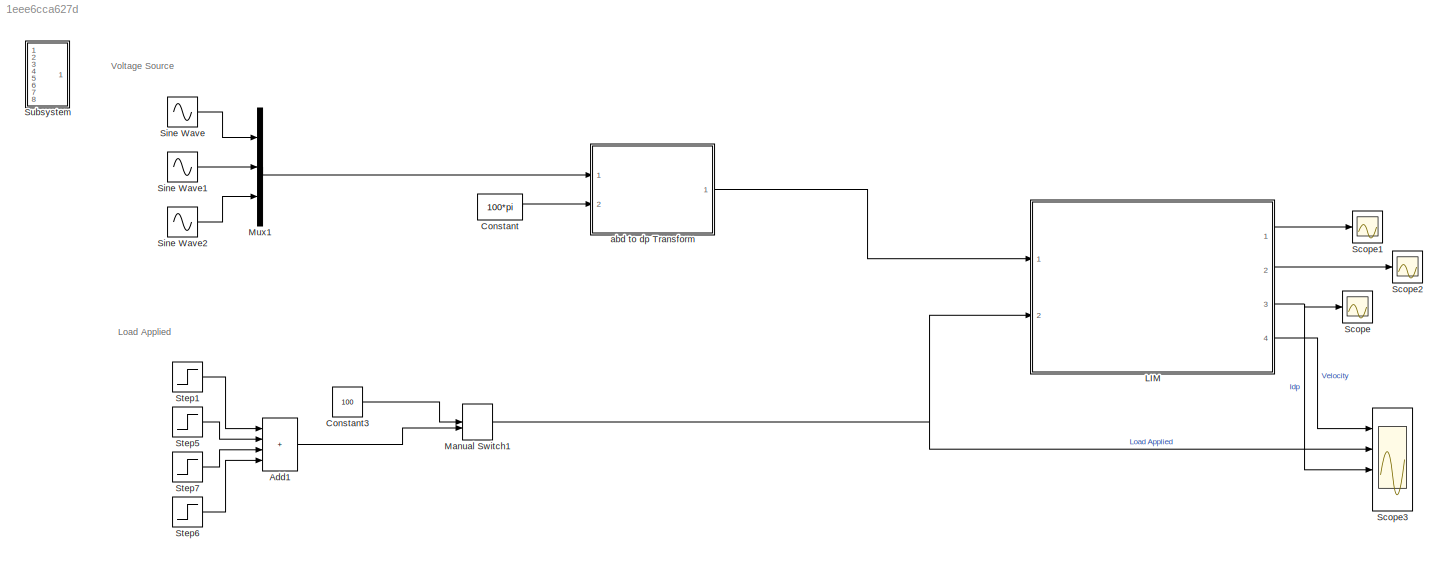
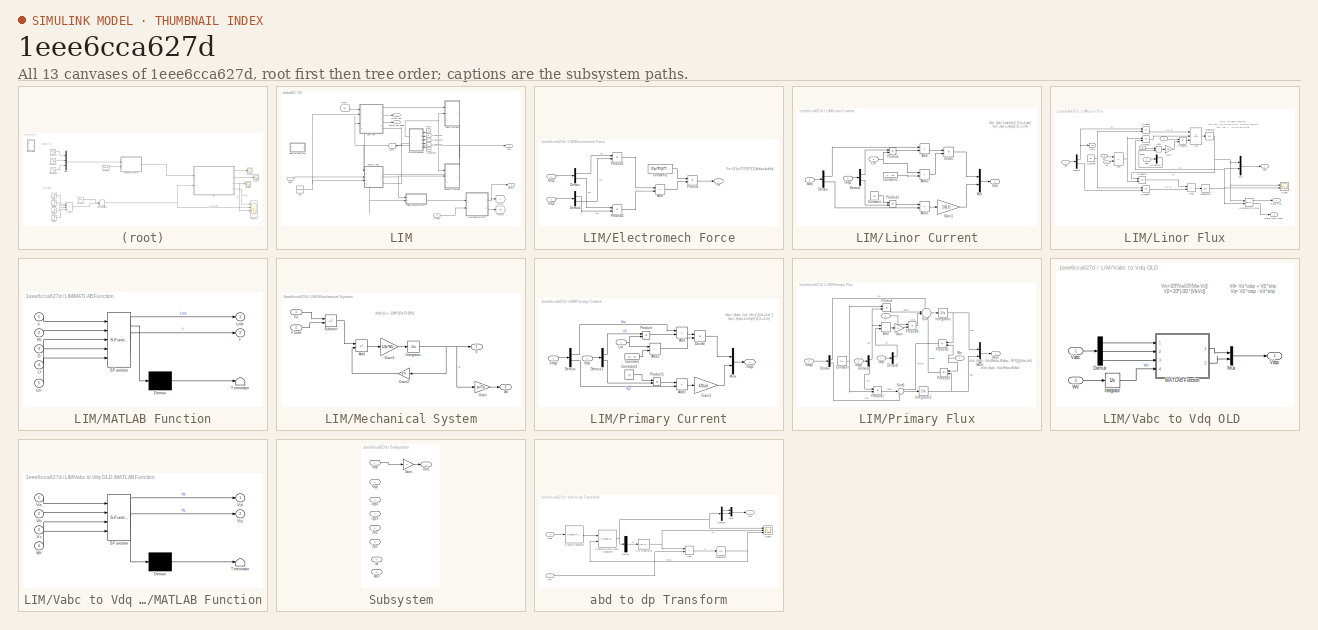
[diagram: thumbnail index - all 13 canvases of the model, root first then tree order]
MODEL slx_1eee6cca627d
KIND model
CONFIG AbsTol = auto
CONFIG EnableMultiTasking = off
CONFIG FixedStep = auto
CONFIG MaxStep = 0.0001
CONFIG MinStep = auto
CONFIG RelTol = 1e-3
CONFIG SampleTimeConstraint = Unconstrained
CONFIG Solver = VariableStepAuto
CONFIG SolverName = VariableStepAuto
CONFIG StartTime = 0.0
CONFIG StopTime = 10
BLOCK [Sum] Add1
  IconShape = rectangular
  Inputs = ++++
  Ports = [4, 1]
BLOCK [Constant] Constant
  Value = 100*pi
BLOCK [Constant] Constant3
  Value = 100
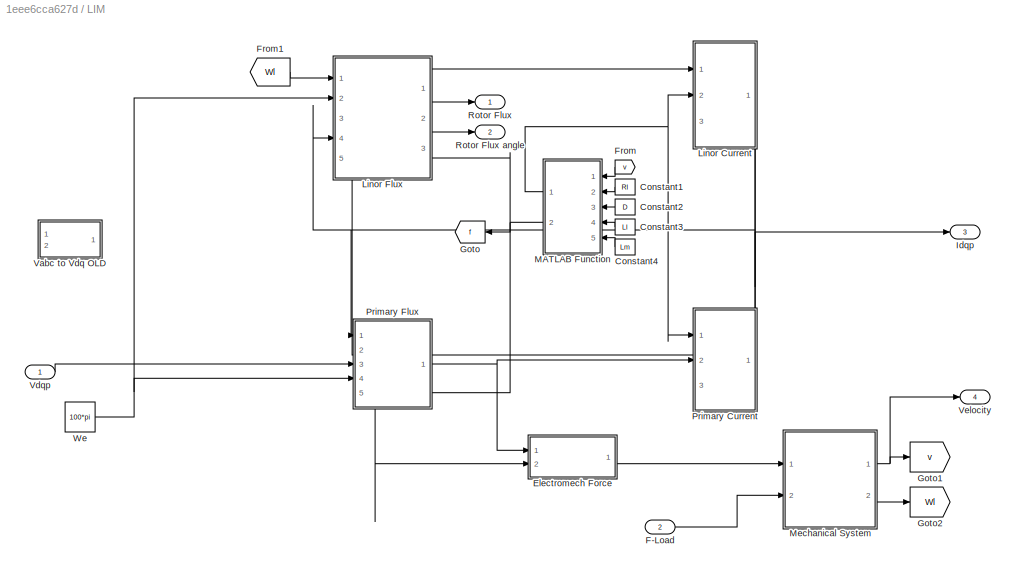
BLOCK [SubSystem] LIM
  Ports = [2, 4]
  RequestExecContextInheritance = off
BLOCK [Constant] LIM/Constant1
  NameLocation = top
  Value = Rl
BLOCK [Constant] LIM/Constant2
  NameLocation = top
  Value = D
BLOCK [Constant] LIM/Constant3
  NameLocation = top
  Value = Ll
BLOCK [Constant] LIM/Constant4
  NameLocation = top
  Value = Lm
BLOCK [SubSystem] LIM/Electromech Force
  Ports = [2, 1]
  RequestExecContextInheritance = off
BLOCK [Sum] LIM/Electromech Force/Add
  IconShape = rectangular
  Inputs = +-
  Ports = [2, 1]
BLOCK [Constant] LIM/Electromech Force/Constant2
  Value = 3*pi*P/(4*Tp)
BLOCK [Demux] LIM/Electromech Force/Demux
  Outputs = 2
  Ports = [1, 2]
BLOCK [Demux] LIM/Electromech Force/Demux1
  Outputs = 2
  Ports = [1, 2]
BLOCK [Outport] LIM/Electromech Force/Fe
BLOCK [Inport] LIM/Electromech Force/Idqp
  Port = 2
BLOCK [Product] LIM/Electromech Force/Product
  Ports = [2, 1]
BLOCK [Product] LIM/Electromech Force/Product1
  Ports = [2, 1]
BLOCK [Product] LIM/Electromech Force/Product2
  Ports = [2, 1]
BLOCK [Inport] LIM/Electromech Force/λdqp
BLOCK [Inport] LIM/F-Load
  Port = 2
BLOCK [From] LIM/From
  GotoTag = v
  NameLocation = top
BLOCK [From] LIM/From1
  GotoTag = Wl
BLOCK [Goto] LIM/Goto
  GotoTag = f
  NameLocation = top
BLOCK [Goto] LIM/Goto1
  GotoTag = v
BLOCK [Goto] LIM/Goto2
  GotoTag = Wl
BLOCK [Outport] LIM/Idqp
  Port = 3
BLOCK [SubSystem] LIM/Linor Current
  NameLocation = top
  PortSchema = {"entries":[{"content":{"sides":[{"content":{"connectorIds":["In1","In2"]},"type":"ConnectorPlacement.EquallySpacedRectSide","uuid":"40d9865c-3cfa-44c1-93eb-682b1c6628f3"},{"content":{"connectorIds":[],"side":"RIGHT"},"type":"ConnectorPlacement.EquallySpacedRectSide","uuid":"35710d59-e170-4e3b-9d71-9b17ce19d5d9"},{"content":{"connectorIds":[],"side":"TOP"},"type":"ConnectorPlacement.EquallySpacedR...<+396ch>
  Ports = [3, 1]
  RequestExecContextInheritance = off
BLOCK [Sum] LIM/Linor Current/Add
  IconShape = rectangular
  Inputs = +-
  Ports = [2, 1]
BLOCK [Sum] LIM/Linor Current/Add1
  IconShape = rectangular
  Inputs = -+
  Ports = [2, 1]
BLOCK [Sum] LIM/Linor Current/Add2
  IconShape = rectangular
  Ports = [2, 1]
BLOCK [Constant] LIM/Linor Current/Constant
  Value = Lm
  VectorParams1D = off
BLOCK [Constant] LIM/Linor Current/Constant1
  Value = Ll - Lm
BLOCK [Demux] LIM/Linor Current/Demux
  Outputs = 2
  Ports = [1, 2]
BLOCK [Demux] LIM/Linor Current/Demux1
  Outputs = 2
  Ports = [1, 2]
BLOCK [Product] LIM/Linor Current/Divide
  Inputs = */
  Ports = [2, 1]
BLOCK [Gain] LIM/Linor Current/Gain1
  Gain = 1/(Ll)
BLOCK [Outport] LIM/Linor Current/Idql
BLOCK [Inport] LIM/Linor Current/Idqp
  Port = 3
BLOCK [Inport] LIM/Linor Current/Lm'
  Port = 2
BLOCK [Mux] LIM/Linor Current/Mux
  DisplayOption = bar
  Inputs = 2
  Ports = [2, 1]
BLOCK [Product] LIM/Linor Current/Product
  Ports = [2, 1]
BLOCK [Product] LIM/Linor Current/Product1
  Ports = [2, 1]
BLOCK [Inport] LIM/Linor Current/λdql
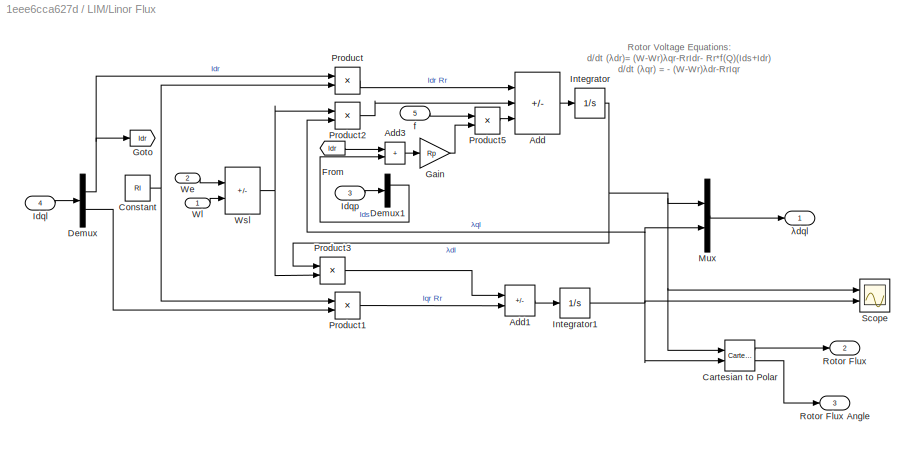
BLOCK [SubSystem] LIM/Linor Flux
  PortSchema = {"entries":[{"content":{"sides":[{"content":{"connectorIds":["In1","In2","In3","In4"]},"type":"ConnectorPlacement.EquallySpacedRectSide","uuid":"b9a9f404-9b3b-4182-a50e-1bf7cef191e8"},{"content":{"connectorIds":["Out1","Out2","Out3","In5"],"side":"RIGHT"},"type":"ConnectorPlacement.EquallySpacedRectSide","uuid":"68159d79-7975-4fd0-98a3-7e35432781a2"},{"content":{"connectorIds":[],"side":"TOP"},"ty...<+278ch>
  Ports = [5, 3]
  RequestExecContextInheritance = off
BLOCK [Sum] LIM/Linor Flux/Add
  IconShape = rectangular
  Inputs = -+-
  Ports = [3, 1]
BLOCK [Sum] LIM/Linor Flux/Add1
  IconShape = rectangular
  Inputs = --
  Ports = [2, 1]
BLOCK [Sum] LIM/Linor Flux/Add3
  IconShape = rectangular
  Ports = [2, 1]
BLOCK [Reference] LIM/Linor Flux/Cartesian to Polar  REF=simulink_extras/Transformations/Cartesian to
Polar
  Ports = [2, 2]
  SourceBlock = simulink_extras/Transformations/Cartesian to\nPolar
  SourceProductBaseCode = SL
  SourceType = Cart2Polar
BLOCK [Constant] LIM/Linor Flux/Constant
  Value = Rl
BLOCK [Demux] LIM/Linor Flux/Demux
  Outputs = 2
  Ports = [1, 2]
BLOCK [Demux] LIM/Linor Flux/Demux1
  Outputs = 2
  Ports = [1, 2]
BLOCK [From] LIM/Linor Flux/From
  GotoTag = Idr
BLOCK [Gain] LIM/Linor Flux/Gain
  Gain = Rp
BLOCK [Goto] LIM/Linor Flux/Goto
  GotoTag = Idr
BLOCK [Inport] LIM/Linor Flux/Idql
  Port = 4
BLOCK [Inport] LIM/Linor Flux/Idqp
  Port = 3
BLOCK [Integrator] LIM/Linor Flux/Integrator
  Ports = [1, 1]
BLOCK [Integrator] LIM/Linor Flux/Integrator1
  Ports = [1, 1]
BLOCK [Mux] LIM/Linor Flux/Mux
  DisplayOption = bar
  Inputs = 2
  Ports = [2, 1]
BLOCK [Product] LIM/Linor Flux/Product
  Ports = [2, 1]
BLOCK [Product] LIM/Linor Flux/Product1
  Ports = [2, 1]
BLOCK [Product] LIM/Linor Flux/Product2
  Ports = [2, 1]
BLOCK [Product] LIM/Linor Flux/Product3
  Ports = [2, 1]
BLOCK [Product] LIM/Linor Flux/Product5
  Ports = [2, 1]
BLOCK [Outport] LIM/Linor Flux/Rotor Flux
  Port = 2
BLOCK [Outport] LIM/Linor Flux/Rotor Flux Angle
  Port = 3
BLOCK [Scope] LIM/Linor Flux/Scope
  Floating = off
  NumInputPorts = 2
  Ports = [2]
  ScopeSpecificationString = Simulink.scopes.TimeScopeBlockCfg('CurrentConfiguration', extmgr.ConfigurationSet(extmgr.Configuration('Core','General UI',true),extmgr.Configuration('Core','Source UI',true),extmgr.Configuration('Sources','WiredSimulink',true,'DataLoggingVariableName','ScopeData1'),extmgr.Configuration('Visuals','Time Domain',true,'SerializedDisplays',{struct('MinYLimReal','-1.28219','MaxYLimReal','1.45674','YLab...<+2050ch>
BLOCK [Inport] LIM/Linor Flux/We
  Port = 2
BLOCK [Inport] LIM/Linor Flux/Wl
BLOCK [Sum] LIM/Linor Flux/Wsl
  IconShape = rectangular
  Inputs = +-
  Ports = [2, 1]
BLOCK [Inport] LIM/Linor Flux/f
  Port = 5
BLOCK [Outport] LIM/Linor Flux/λdql
BLOCK [SubSystem] LIM/MATLAB Function
  ErrorFcn = Stateflow.Translate.translate
  NameLocation = top
  PermitHierarchicalResolution = ExplicitOnly
  Ports = [5, 2]
  RequestExecContextInheritance = off
  SFBlockType = MATLAB Function
  TreatAsAtomicUnit = on
BLOCK [Demux] LIM/MATLAB Function/ Demux 
  Outputs = 1
  Ports = [1, 1]
BLOCK [S-Function] LIM/MATLAB Function/ SFunction 
  EnableBusSupport = on
  FunctionName = sf_sfun
  PortCounts = [5 3]
  Ports = [5, 3]
  SFcnIsStateOwnerBlock = off
  SFunctionDeploymentMode = off
  Tag = Stateflow S-Function 2
BLOCK [Terminator] LIM/MATLAB Function/ Terminator 
BLOCK [Inport] LIM/MATLAB Function/D
  Port = 3
BLOCK [Inport] LIM/MATLAB Function/Ll
  Port = 4
BLOCK [Inport] LIM/MATLAB Function/Lm
  Port = 5
BLOCK [Outport] LIM/MATLAB Function/Lme
BLOCK [Inport] LIM/MATLAB Function/Rl
  Port = 2
BLOCK [Outport] LIM/MATLAB Function/f
  Port = 2
BLOCK [Inport] LIM/MATLAB Function/v
BLOCK [SubSystem] LIM/Mechanical System
  Ports = [2, 2]
  RequestExecContextInheritance = off
BLOCK [Sum] LIM/Mechanical System/Add
  IconShape = rectangular
  Inputs = +-
  Ports = [2, 1]
BLOCK [Inport] LIM/Mechanical System/F-load
  Port = 2
BLOCK [Inport] LIM/Mechanical System/Fe
BLOCK [Gain] LIM/Mechanical System/Gain
  Gain = pi/Tp
BLOCK [Gain] LIM/Mechanical System/Gain1
  Gain = 1/(k*M)
BLOCK [Gain] LIM/Mechanical System/Gain2
  Gain = B*k
  NameLocation = top
BLOCK [Integrator] LIM/Mechanical System/Integrator
  Ports = [1, 1]
BLOCK [Sum] LIM/Mechanical System/Subtract
  IconShape = rectangular
  Inputs = +-
  Ports = [2, 1]
BLOCK [Outport] LIM/Mechanical System/V
BLOCK [Outport] LIM/Mechanical System/Wl
  Port = 2
BLOCK [SubSystem] LIM/Primary Current
  PortSchema = {"entries":[{"content":{"sides":[{"content":{"connectorIds":["In1","In2"]},"type":"ConnectorPlacement.EquallySpacedRectSide","uuid":"40d9865c-3cfa-44c1-93eb-682b1c6628f3"},{"content":{"connectorIds":[],"side":"RIGHT"},"type":"ConnectorPlacement.EquallySpacedRectSide","uuid":"35710d59-e170-4e3b-9d71-9b17ce19d5d9"},{"content":{"connectorIds":["Out1","In3"],"side":"TOP"},"type":"ConnectorPlacement.Eq...<+252ch>
  Ports = [3, 1]
  RequestExecContextInheritance = off
BLOCK [Sum] LIM/Primary Current/Add
  IconShape = rectangular
  Inputs = +-
  Ports = [2, 1]
BLOCK [Sum] LIM/Primary Current/Add1
  IconShape = rectangular
  Inputs = -+
  Ports = [2, 1]
BLOCK [Sum] LIM/Primary Current/Add2
  IconShape = rectangular
  Ports = [2, 1]
BLOCK [Constant] LIM/Primary Current/Constant
  Value = Lp - Lm
BLOCK [Constant] LIM/Primary Current/Constant1
  Value = Lm
  VectorParams1D = off
BLOCK [Demux] LIM/Primary Current/Demux
  Outputs = 2
  Ports = [1, 2]
BLOCK [Demux] LIM/Primary Current/Demux1
  Outputs = 2
  Ports = [1, 2]
BLOCK [Product] LIM/Primary Current/Divide
  Inputs = */
  Ports = [2, 1]
BLOCK [Gain] LIM/Primary Current/Gain1
  Gain = 1/(Lp)
BLOCK [Inport] LIM/Primary Current/Idql
  Port = 3
BLOCK [Outport] LIM/Primary Current/Idqp
BLOCK [Inport] LIM/Primary Current/Lm'
BLOCK [Mux] LIM/Primary Current/Mux
  DisplayOption = bar
  Inputs = 2
  Ports = [2, 1]
BLOCK [Product] LIM/Primary Current/Product
  Ports = [2, 1]
BLOCK [Product] LIM/Primary Current/Product1
  Ports = [2, 1]
BLOCK [Inport] LIM/Primary Current/λdqp
  Port = 2
BLOCK [SubSystem] LIM/Primary Flux
  PortSchema = {"entries":[{"content":{"sides":[{"content":{"connectorIds":["In1","In2","In3","In4"]},"type":"ConnectorPlacement.EquallySpacedRectSide","uuid":"a4b29cca-9cb0-4324-9244-2049ffc93668"},{"content":{"connectorIds":["In5","Out1"],"side":"RIGHT"},"type":"ConnectorPlacement.EquallySpacedRectSide","uuid":"b20ff3ac-d40e-4f59-bb91-f6f2c0c6ca63"},{"content":{"connectorIds":[],"side":"TOP"},"type":"Connector...<+264ch>
  Ports = [5, 1]
  RequestExecContextInheritance = off
BLOCK [Sum] LIM/Primary Flux/Add
  IconShape = rectangular
  Ports = [2, 1]
BLOCK [Constant] LIM/Primary Flux/Constant
  Value = Rp
BLOCK [Demux] LIM/Primary Flux/Demux
  Outputs = 2
  Ports = [1, 2]
BLOCK [Demux] LIM/Primary Flux/Demux1
  Outputs = 2
  Ports = [1, 2]
BLOCK [Demux] LIM/Primary Flux/Demux2
  Outputs = 2
  Ports = [1, 2]
BLOCK [Gain] LIM/Primary Flux/Gain
  Gain = Rl
BLOCK [Inport] LIM/Primary Flux/Idql
BLOCK [Inport] LIM/Primary Flux/Idqp
  Port = 2
BLOCK [Integrator] LIM/Primary Flux/Integrator
  Ports = [1, 1]
BLOCK [Integrator] LIM/Primary Flux/Integrator1
  Ports = [1, 1]
BLOCK [Mux] LIM/Primary Flux/Mux1
  DisplayOption = bar
  Inputs = 2
  Ports = [2, 1]
BLOCK [Product] LIM/Primary Flux/Product
  Ports = [2, 1]
BLOCK [Product] LIM/Primary Flux/Product1
  Ports = [2, 1]
BLOCK [Product] LIM/Primary Flux/Product2
  NameLocation = top
  Ports = [2, 1]
BLOCK [Product] LIM/Primary Flux/Product3
  NameLocation = top
  Ports = [2, 1]
BLOCK [Product] LIM/Primary Flux/Product4
  Ports = [2, 1]
BLOCK [Sum] LIM/Primary Flux/Sum
  Inputs = +--+
  Ports = [4, 1]
BLOCK [Sum] LIM/Primary Flux/Sum1
  Inputs = --+
  Ports = [3, 1]
BLOCK [Inport] LIM/Primary Flux/Vdqp
  Port = 3
BLOCK [Inport] LIM/Primary Flux/We
  NameLocation = top
  Port = 4
BLOCK [Inport] LIM/Primary Flux/f
  Port = 5
BLOCK [Outport] LIM/Primary Flux/λdqs
BLOCK [Outport] LIM/Rotor Flux
BLOCK [Outport] LIM/Rotor Flux angle
  Port = 2
BLOCK [SubSystem] LIM/Vabc to Vdq OLD 
  Commented = on
  Ports = [2, 1]
  RequestExecContextInheritance = off
BLOCK [Demux] LIM/Vabc to Vdq OLD /Demux
  Outputs = 3
  Ports = [1, 3]
BLOCK [Integrator] LIM/Vabc to Vdq OLD /Integrator
  Ports = [1, 1]
BLOCK [SubSystem] LIM/Vabc to Vdq OLD /MATLAB Function
  ErrorFcn = Stateflow.Translate.translate
  PermitHierarchicalResolution = ExplicitOnly
  Ports = [4, 2]
  RequestExecContextInheritance = off
  SFBlockType = MATLAB Function
  TreatAsAtomicUnit = on
BLOCK [Demux] LIM/Vabc to Vdq OLD /MATLAB Function/ Demux 
  Outputs = 1
  Ports = [1, 1]
BLOCK [S-Function] LIM/Vabc to Vdq OLD /MATLAB Function/ SFunction 
  EnableBusSupport = on
  FunctionName = sf_sfun
  PortCounts = [4 3]
  Ports = [4, 3]
  SFcnIsStateOwnerBlock = off
  SFunctionDeploymentMode = off
  Tag = Stateflow S-Function 1
BLOCK [Terminator] LIM/Vabc to Vdq OLD /MATLAB Function/ Terminator 
BLOCK [Inport] LIM/Vabc to Vdq OLD /MATLAB Function/Va
BLOCK [Inport] LIM/Vabc to Vdq OLD /MATLAB Function/Vb
  Port = 2
BLOCK [Inport] LIM/Vabc to Vdq OLD /MATLAB Function/Vc
  Port = 3
BLOCK [Outport] LIM/Vabc to Vdq OLD /MATLAB Function/Vd
BLOCK [Outport] LIM/Vabc to Vdq OLD /MATLAB Function/Vq
  Port = 2
BLOCK [Inport] LIM/Vabc to Vdq OLD /MATLAB Function/Wt
  Port = 4
BLOCK [Mux] LIM/Vabc to Vdq OLD /Mux
  DisplayOption = bar
  Inputs = 2
  Ports = [2, 1]
BLOCK [Inport] LIM/Vabc to Vdq OLD /Vabc
BLOCK [Outport] LIM/Vabc to Vdq OLD /Vdqs
BLOCK [Inport] LIM/Vabc to Vdq OLD /We
  Port = 2
BLOCK [Inport] LIM/Vdqp
BLOCK [Outport] LIM/Velocity
  Port = 4
BLOCK [Constant] LIM/We
  Value = 100*pi
BLOCK [ManualSwitch] Manual Switch1
  CurrentSetting = 0
BLOCK [Mux] Mux1
  DisplayOption = bar
  Inputs = 3
  Ports = [3, 1]
BLOCK [Scope] Scope
  Floating = off
  NumInputPorts = 1
  Ports = [1]
  ScopeSpecificationString = Simulink.scopes.TimeScopeBlockCfg('CurrentConfiguration', extmgr.ConfigurationSet(extmgr.Configuration('Core','General UI',true),extmgr.Configuration('Core','Source UI',true),extmgr.Configuration('Sources','WiredSimulink',true,'DataLoggingVariableName','ScopeData1'),extmgr.Configuration('Visuals','Time Domain',true,'SerializedDisplays',{struct('MinYLimReal','-9.99034','MaxYLimReal','9.13098','YLab...<+1437ch>
BLOCK [Scope] Scope1
  Floating = off
  NumInputPorts = 1
  Ports = [1]
  ScopeSpecificationString = Simulink.scopes.TimeScopeBlockCfg('CurrentConfiguration', extmgr.ConfigurationSet(extmgr.Configuration('Core','General UI',true),extmgr.Configuration('Core','Source UI',true),extmgr.Configuration('Sources','WiredSimulink',true,'DataLoggingVariableName','ScopeData2'),extmgr.Configuration('Visuals','Time Domain',true),extmgr.Configuration('Tools','Plot Navigation',true),extmgr.Configuration('Tools',...<+40ch>
BLOCK [Scope] Scope2
  Floating = off
  NumInputPorts = 1
  Ports = [1]
  ScopeSpecificationString = Simulink.scopes.TimeScopeBlockCfg('CurrentConfiguration', extmgr.ConfigurationSet(extmgr.Configuration('Core','General UI',true),extmgr.Configuration('Core','Source UI',true),extmgr.Configuration('Sources','WiredSimulink',true,'DataLoggingVariableName','ScopeData3'),extmgr.Configuration('Visuals','Time Domain',true),extmgr.Configuration('Tools','Plot Navigation',true),extmgr.Configuration('Tools',...<+40ch>
BLOCK [Scope] Scope3
  Floating = off
  NumInputPorts = 4
  Ports = [4]
  ScopeSpecificationString = Simulink.scopes.TimeScopeBlockCfg('CurrentConfiguration', extmgr.ConfigurationSet(extmgr.Configuration('Core','General UI',true),extmgr.Configuration('Core','Source UI',true),extmgr.Configuration('Sources','WiredSimulink',true,'DataLoggingVariableName','ScopeData4'),extmgr.Configuration('Visuals','Time Domain',true,'SerializedDisplays',{struct('MinYLimReal','-0.67516','MaxYLimReal','4.73273','YLab...<+3417ch>
BLOCK [Sin] Sine Wave
  Amplitude = 230
  Frequency = 100*pi
  Ports = [0, 1]
  SampleTime = 0
BLOCK [Sin] Sine Wave1
  Amplitude = 230
  Frequency = 100*pi
  Phase = 2*pi/3
  Ports = [0, 1]
  SampleTime = 0
BLOCK [Sin] Sine Wave2
  Amplitude = 230
  Frequency = 100*pi
  Phase = -2*pi/3
  Ports = [0, 1]
  SampleTime = 0
BLOCK [Step] Step1
  After = 4
  SampleTime = 0
  Time = 0.5
BLOCK [Step] Step5
  After = 50
  SampleTime = 0
  Time = 0.9
BLOCK [Step] Step6
  After = 50
  SampleTime = 0
  Time = 2
BLOCK [Step] Step7
  After = 100
  SampleTime = 0
  Time = 1.5
BLOCK [SubSystem] Subsystem
  Commented = on
  Ports = [8, 1]
  RequestExecContextInheritance = off
BLOCK [Gain] Subsystem/Gain
BLOCK [Outport] Subsystem/Out1
BLOCK [Inport] Subsystem/Vdp
BLOCK [Inport] Subsystem/Vqp
  Port = 2
BLOCK [Inport] Subsystem/W
  Port = 7
BLOCK [Inport] Subsystem/Wsl
  Port = 8
BLOCK [Inport] Subsystem/idlx
  Port = 5
BLOCK [Inport] Subsystem/idpx
  Port = 3
BLOCK [Inport] Subsystem/iqlx
  Port = 6
BLOCK [Inport] Subsystem/iqpx
  Port = 4
BLOCK [SubSystem] abd to dp Transform
  Ports = [2, 1]
  RequestExecContextInheritance = off
BLOCK [Sum] abd to dp Transform/Add
  IconShape = rectangular
  Ports = [2, 1]
BLOCK [Reference] abd to dp Transform/Clarke Transform  REF=eeTransforms/Clarke Transform
  Ports = [1, 1]
  SourceBlock = eeTransforms/Clarke Transform
  SourceProductBaseCode = PS
  SourceType = Clarke Transform
BLOCK [Reference] abd to dp Transform/Clarke to Park Angle Transform  REF=eeTransforms/Clarke to Park
Angle Transform
  Ports = [2, 1]
  SourceBlock = eeTransforms/Clarke to Park\nAngle Transform
  SourceProductBaseCode = PS
  SourceType = Clarke to Park Angle Transform
BLOCK [Demux] abd to dp Transform/Demux
  Outputs = 3
  Ports = [1, 3]
BLOCK [Demux] abd to dp Transform/Demux1
  Outputs = 3
  Ports = [1, 3]
BLOCK [Integrator] abd to dp Transform/Integrator2
  Ports = [1, 1]
BLOCK [Mux] abd to dp Transform/Mux
  DisplayOption = bar
  Inputs = 2
  Ports = [2, 1]
BLOCK [Reference] abd to dp Transform/PID Controller  REF=simulink/Continuous/PID Controller
  Ports = [1, 1]
  SourceBlock = simulink/Continuous/PID Controller
  SourceProductBaseCode = SL
  SourceType = PID 1dof
BLOCK [Scope] abd to dp Transform/Scope
  Floating = off
  NumInputPorts = 3
  Ports = [3]
  ScopeSpecificationString = Simulink.scopes.TimeScopeBlockCfg('CurrentConfiguration', extmgr.ConfigurationSet(extmgr.Configuration('Core','General UI',true),extmgr.Configuration('Core','Source UI',true),extmgr.Configuration('Sources','WiredSimulink',true,'DataLoggingVariableName','ScopeData1'),extmgr.Configuration('Visuals','Time Domain',true,'SerializedDisplays',{struct('MinYLimReal','-287.5','MaxYLimReal','287.5','YLabelRe...<+3420ch>
BLOCK [Inport] abd to dp Transform/Vabc
BLOCK [Outport] abd to dp Transform/Vdq
BLOCK [Inport] abd to dp Transform/We
  Port = 2
ANNOTATION (root): Load Applied
ANNOTATION (root): Voltage Source
ANNOTATION LIM/Electromech Force: Fe=(3*pi/2*t)*(P/2)*[ λdsIqs-λqsIds]
ANNOTATION LIM/Linor Current: Idr= ( λdr- LmeIds )/ (Llr+Lme) Iqr= ( λqr-LmIqs )/ (Lr+Lm)
ANNOTATION LIM/Linor Flux: Rotor Voltage Equations: d/dt ( λdr )= (W-Wr) λqr-RrIdr- Rr*f(Q)(Ids+Idr) d/dt (λqr) = - (W-Wr)λdr-RrIqr
ANNOTATION LIM/Mechanical System: d/dt (v) = 1/M* [Fe-Fl-B*v]
ANNOTATION LIM/Primary Current: Ids= ( λds- Lm' Idr )/ (Lls+Lm') Iqs= ( λqs-LmIqr )/ (Lls+Lm)
ANNOTATION LIM/Primary Flux: d/dt (λds)= Vds-RsIds+Wsλqs - Rr*f(Q)(Ids+Idr) d/dt (λqs)= Vqs-RsIqs-Wsλds
ANNOTATION LIM/Vabc to Vdq OLD : Vd= Vα*cos ρ + Vβ*sin ρ Vq= Vβ*cos ρ - Vα*sin ρ
ANNOTATION LIM/Vabc to Vdq OLD : Vα=2/3*[Va-0.5*{Vb+Vc}] Vβ=2/3*[√3/2 *{Vb-Vc}]
LINE Add1:1 -> Manual Switch1:2
LINE Constant3:1 -> Manual Switch1:1
LINE Constant:1 -> abd to dp Transform:2
LINE LIM/Constant1:1 -> LIM/MATLAB Function:2
LINE LIM/Constant2:1 -> LIM/MATLAB Function:3
LINE LIM/Constant3:1 -> LIM/MATLAB Function:4
LINE LIM/Constant4:1 -> LIM/MATLAB Function:5
LINE LIM/Electromech Force/Add:1 -> LIM/Electromech Force/Product:2
LINE LIM/Electromech Force/Constant2:1 -> LIM/Electromech Force/Product:1
LINE LIM/Electromech Force/Demux1:1 -> LIM/Electromech Force/Product2:2
LINE LIM/Electromech Force/Demux1:2 -> LIM/Electromech Force/Product1:2
LINE LIM/Electromech Force/Demux:1 -> LIM/Electromech Force/Product1:1
LINE LIM/Electromech Force/Demux:2 -> LIM/Electromech Force/Product2:1
LINE LIM/Electromech Force/Idqp:1 -> LIM/Electromech Force/Demux1:1
LINE LIM/Electromech Force/Product1:1 -> LIM/Electromech Force/Add:1
LINE LIM/Electromech Force/Product2:1 -> LIM/Electromech Force/Add:2
LINE LIM/Electromech Force/Product:1 -> LIM/Electromech Force/Fe:1
LINE LIM/Electromech Force/λdqp:1 -> LIM/Electromech Force/Demux:1
LINE LIM/Electromech Force:1 -> LIM/Mechanical System:1
LINE LIM/F-Load:1 -> LIM/Mechanical System:2
LINE LIM/From1:1 -> LIM/Linor Flux:1
LINE LIM/From:1 -> LIM/MATLAB Function:1
LINE LIM/Linor Current/Add1:1 -> LIM/Linor Current/Gain1:1
LINE LIM/Linor Current/Add2:1 -> LIM/Linor Current/Divide:2
LINE LIM/Linor Current/Add:1 -> LIM/Linor Current/Divide:1
LINE LIM/Linor Current/Constant1:1 -> LIM/Linor Current/Add2:2
LINE LIM/Linor Current/Constant:1 -> LIM/Linor Current/Product1:1
LINE LIM/Linor Current/Demux1:1 -> LIM/Linor Current/Product:1
LINE LIM/Linor Current/Demux1:2 -> LIM/Linor Current/Product1:2
LINE LIM/Linor Current/Demux:1 -> LIM/Linor Current/Add:1
LINE LIM/Linor Current/Demux:2 -> LIM/Linor Current/Add1:2
LINE LIM/Linor Current/Divide:1 -> LIM/Linor Current/Mux:1
LINE LIM/Linor Current/Gain1:1 -> LIM/Linor Current/Mux:2
LINE LIM/Linor Current/Idqp:1 -> LIM/Linor Current/Demux1:1
NET LIM/Linor Current/Lm':1 -> LIM/Linor Current/Add2:1, LIM/Linor Current/Product:2
LINE LIM/Linor Current/Mux:1 -> LIM/Linor Current/Idql:1
LINE LIM/Linor Current/Product1:1 -> LIM/Linor Current/Add1:1
LINE LIM/Linor Current/Product:1 -> LIM/Linor Current/Add:2
LINE LIM/Linor Current/λdql:1 -> LIM/Linor Current/Demux:1
NET LIM/Linor Current:1 -> LIM/Linor Flux:4, LIM/Primary Current:3, LIM/Primary Flux:1
LINE LIM/Linor Flux/Add1:1 -> LIM/Linor Flux/Integrator1:1
LINE LIM/Linor Flux/Add3:1 -> LIM/Linor Flux/Gain:1
LINE LIM/Linor Flux/Add:1 -> LIM/Linor Flux/Integrator:1
LINE LIM/Linor Flux/Cartesian to Polar:1 -> LIM/Linor Flux/Rotor Flux:1
LINE LIM/Linor Flux/Cartesian to Polar:2 -> LIM/Linor Flux/Rotor Flux Angle:1
NET LIM/Linor Flux/Constant:1 -> LIM/Linor Flux/Product1:1, LIM/Linor Flux/Product:2
LINE LIM/Linor Flux/Demux1:1 -> LIM/Linor Flux/Add3:2
NET LIM/Linor Flux/Demux:1 -> LIM/Linor Flux/Goto:1, LIM/Linor Flux/Product:1
LINE LIM/Linor Flux/Demux:2 -> LIM/Linor Flux/Product1:2
LINE LIM/Linor Flux/From:1 -> LIM/Linor Flux/Add3:1
LINE LIM/Linor Flux/Gain:1 -> LIM/Linor Flux/Product5:2
LINE LIM/Linor Flux/Idql:1 -> LIM/Linor Flux/Demux:1
LINE LIM/Linor Flux/Idqp:1 -> LIM/Linor Flux/Demux1:1
NET LIM/Linor Flux/Integrator1:1 -> LIM/Linor Flux/Cartesian to Polar:2, LIM/Linor Flux/Mux:2, LIM/Linor Flux/Product2:2, LIM/Linor Flux/Scope:2
NET LIM/Linor Flux/Integrator:1 -> LIM/Linor Flux/Cartesian to Polar:1, LIM/Linor Flux/Mux:1, LIM/Linor Flux/Product3:1, LIM/Linor Flux/Scope:1
LINE LIM/Linor Flux/Mux:1 -> LIM/Linor Flux/λdql:1
LINE LIM/Linor Flux/Product1:1 -> LIM/Linor Flux/Add1:2
LINE LIM/Linor Flux/Product2:1 -> LIM/Linor Flux/Add:2
LINE LIM/Linor Flux/Product3:1 -> LIM/Linor Flux/Add1:1
LINE LIM/Linor Flux/Product5:1 -> LIM/Linor Flux/Add:3
LINE LIM/Linor Flux/Product:1 -> LIM/Linor Flux/Add:1
LINE LIM/Linor Flux/We:1 -> LIM/Linor Flux/Wsl:1
LINE LIM/Linor Flux/Wl:1 -> LIM/Linor Flux/Wsl:2
NET LIM/Linor Flux/Wsl:1 -> LIM/Linor Flux/Product2:1, LIM/Linor Flux/Product3:2
LINE LIM/Linor Flux/f:1 -> LIM/Linor Flux/Product5:1
LINE LIM/Linor Flux:1 -> LIM/Linor Current:1
LINE LIM/Linor Flux:2 -> LIM/Rotor Flux:1
LINE LIM/Linor Flux:3 -> LIM/Rotor Flux angle:1
NET LIM/MATLAB Function:1 -> LIM/Linor Current:2, LIM/Primary Current:1
NET LIM/MATLAB Function:2 -> LIM/Goto:1, LIM/Linor Flux:5, LIM/Primary Flux:5
LINE LIM/Mechanical System/Add:1 -> LIM/Mechanical System/Gain1:1
LINE LIM/Mechanical System/F-load:1 -> LIM/Mechanical System/Subtract:2
LINE LIM/Mechanical System/Fe:1 -> LIM/Mechanical System/Subtract:1
LINE LIM/Mechanical System/Gain1:1 -> LIM/Mechanical System/Integrator:1
LINE LIM/Mechanical System/Gain2:1 -> LIM/Mechanical System/Add:2
LINE LIM/Mechanical System/Gain:1 -> LIM/Mechanical System/Wl:1
NET LIM/Mechanical System/Integrator:1 -> LIM/Mechanical System/Gain2:1, LIM/Mechanical System/Gain:1, LIM/Mechanical System/V:1
LINE LIM/Mechanical System/Subtract:1 -> LIM/Mechanical System/Add:1
NET LIM/Mechanical System:1 -> LIM/Goto1:1, LIM/Velocity:1
LINE LIM/Mechanical System:2 -> LIM/Goto2:1
LINE LIM/Primary Current/Add1:1 -> LIM/Primary Current/Gain1:1
LINE LIM/Primary Current/Add2:1 -> LIM/Primary Current/Divide:2
LINE LIM/Primary Current/Add:1 -> LIM/Primary Current/Divide:1
LINE LIM/Primary Current/Constant1:1 -> LIM/Primary Current/Product1:1
LINE LIM/Primary Current/Constant:1 -> LIM/Primary Current/Add2:2
LINE LIM/Primary Current/Demux1:1 -> LIM/Primary Current/Product:1
LINE LIM/Primary Current/Demux1:2 -> LIM/Primary Current/Product1:2
LINE LIM/Primary Current/Demux:1 -> LIM/Primary Current/Add:1
LINE LIM/Primary Current/Demux:2 -> LIM/Primary Current/Add1:2
LINE LIM/Primary Current/Divide:1 -> LIM/Primary Current/Mux:1
LINE LIM/Primary Current/Gain1:1 -> LIM/Primary Current/Mux:2
LINE LIM/Primary Current/Idql:1 -> LIM/Primary Current/Demux1:1
NET LIM/Primary Current/Lm':1 -> LIM/Primary Current/Add2:1, LIM/Primary Current/Product:2
LINE LIM/Primary Current/Mux:1 -> LIM/Primary Current/Idqp:1
LINE LIM/Primary Current/Product1:1 -> LIM/Primary Current/Add1:1
LINE LIM/Primary Current/Product:1 -> LIM/Primary Current/Add:2
LINE LIM/Primary Current/λdqp:1 -> LIM/Primary Current/Demux:1
NET LIM/Primary Current:1 -> LIM/Electromech Force:2, LIM/Idqp:1, LIM/Linor Current:3, LIM/Linor Flux:3, LIM/Primary Flux:2
LINE LIM/Primary Flux/Add:1 -> LIM/Primary Flux/Gain:1
NET LIM/Primary Flux/Constant:1 -> LIM/Primary Flux/Product1:2, LIM/Primary Flux/Product:1
NET LIM/Primary Flux/Demux1:1 -> LIM/Primary Flux/Add:1, LIM/Primary Flux/Product:2
LINE LIM/Primary Flux/Demux1:2 -> LIM/Primary Flux/Product1:1
LINE LIM/Primary Flux/Demux2:1 -> LIM/Primary Flux/Add:2
LINE LIM/Primary Flux/Demux:1 -> LIM/Primary Flux/Sum:1
LINE LIM/Primary Flux/Demux:2 -> LIM/Primary Flux/Sum1:3
LINE LIM/Primary Flux/Gain:1 -> LIM/Primary Flux/Product4:2
LINE LIM/Primary Flux/Idql:1 -> LIM/Primary Flux/Demux2:1
LINE LIM/Primary Flux/Idqp:1 -> LIM/Primary Flux/Demux1:1
NET LIM/Primary Flux/Integrator1:1 -> LIM/Primary Flux/Mux1:2, LIM/Primary Flux/Product3:2
NET LIM/Primary Flux/Integrator:1 -> LIM/Primary Flux/Mux1:1, LIM/Primary Flux/Product2:1
LINE LIM/Primary Flux/Mux1:1 -> LIM/Primary Flux/λdqs:1
LINE LIM/Primary Flux/Product1:1 -> LIM/Primary Flux/Sum1:2
LINE LIM/Primary Flux/Product2:1 -> LIM/Primary Flux/Sum1:1
LINE LIM/Primary Flux/Product3:1 -> LIM/Primary Flux/Sum:4
LINE LIM/Primary Flux/Product4:1 -> LIM/Primary Flux/Sum:3
LINE LIM/Primary Flux/Product:1 -> LIM/Primary Flux/Sum:2
LINE LIM/Primary Flux/Sum1:1 -> LIM/Primary Flux/Integrator1:1
LINE LIM/Primary Flux/Sum:1 -> LIM/Primary Flux/Integrator:1
LINE LIM/Primary Flux/Vdqp:1 -> LIM/Primary Flux/Demux:1
NET LIM/Primary Flux/We:1 -> LIM/Primary Flux/Product2:2, LIM/Primary Flux/Product3:1
LINE LIM/Primary Flux/f:1 -> LIM/Primary Flux/Product4:1
NET LIM/Primary Flux:1 -> LIM/Electromech Force:1, LIM/Primary Current:2
LINE LIM/Vabc to Vdq OLD /Demux:1 -> LIM/Vabc to Vdq OLD /MATLAB Function:1
LINE LIM/Vabc to Vdq OLD /Demux:2 -> LIM/Vabc to Vdq OLD /MATLAB Function:2
LINE LIM/Vabc to Vdq OLD /Demux:3 -> LIM/Vabc to Vdq OLD /MATLAB Function:3
LINE LIM/Vabc to Vdq OLD /Integrator:1 -> LIM/Vabc to Vdq OLD /MATLAB Function:4
LINE LIM/Vabc to Vdq OLD /MATLAB Function:1 -> LIM/Vabc to Vdq OLD /Mux:1
LINE LIM/Vabc to Vdq OLD /MATLAB Function:2 -> LIM/Vabc to Vdq OLD /Mux:2
LINE LIM/Vabc to Vdq OLD /Mux:1 -> LIM/Vabc to Vdq OLD /Vdqs:1
LINE LIM/Vabc to Vdq OLD /Vabc:1 -> LIM/Vabc to Vdq OLD /Demux:1
LINE LIM/Vabc to Vdq OLD /We:1 -> LIM/Vabc to Vdq OLD /Integrator:1
LINE LIM/Vdqp:1 -> LIM/Primary Flux:3
NET LIM/We:1 -> LIM/Linor Flux:2, LIM/Primary Flux:4
LINE LIM:1 -> Scope1:1
LINE LIM:2 -> Scope2:1
NET LIM:3 -> Scope3:3, Scope:1
LINE LIM:4 -> Scope3:1
NET Manual Switch1:1 -> LIM:2, Scope3:2
LINE Mux1:1 -> abd to dp Transform:1
LINE Sine Wave1:1 -> Mux1:2
LINE Sine Wave2:1 -> Mux1:3
LINE Sine Wave:1 -> Mux1:1
LINE Step1:1 -> Add1:1
LINE Step5:1 -> Add1:2
LINE Step6:1 -> Add1:4
LINE Step7:1 -> Add1:3
LINE Subsystem/Gain:1 -> Subsystem/Out1:1
LINE Subsystem/Vdp:1 -> Subsystem/Gain:1
LINE abd to dp Transform/Add:1 -> abd to dp Transform/Integrator2:1
LINE abd to dp Transform/Clarke Transform:1 -> abd to dp Transform/Clarke to Park Angle Transform:1
NET abd to dp Transform/Clarke to Park Angle Transform:1 -> abd to dp Transform/Demux1:1, abd to dp Transform/Demux:1, abd to dp Transform/Scope:1
LINE abd to dp Transform/Demux1:1 -> abd to dp Transform/Mux:1
LINE abd to dp Transform/Demux1:2 -> abd to dp Transform/Mux:2
LINE abd to dp Transform/Demux:2 -> abd to dp Transform/PID Controller:1
NET abd to dp Transform/Integrator2:1 -> abd to dp Transform/Clarke to Park Angle Transform:2, abd to dp Transform/Scope:3
LINE abd to dp Transform/Mux:1 -> abd to dp Transform/Vdq:1
NET abd to dp Transform/PID Controller:1 -> abd to dp Transform/Add:1, abd to dp Transform/Scope:2
LINE abd to dp Transform/Vabc:1 -> abd to dp Transform/Clarke Transform:1
LINE abd to dp Transform/We:1 -> abd to dp Transform/Add:2
LINE abd to dp Transform:1 -> LIM:1
note: NET lines group one-source signal fan-out (src -> all destinations, sorted); 1:1 wires keep LINE
CHART LIM/Vabc to Vdq OLD
/MATLAB Function states=1 transitions=1
  STATE_LABEL 'eML_blk_kernel()'
  STATE_LABEL "SCRIPT:\nfunction [Vd,Vq] = Transform(Va, Vb, Vc, Wt)\n    M = [cos(Wt)    cos(Wt - 2*pi/3)    cos(Wt-4*pi/3);\n        -sin(Wt)    -sin(Wt- 2*pi/3)    -sin(Wt-4*pi/3);\n        1/sqrt(2)       1/sqrt(2)           1/sqrt(2)];\n    \n    DQ = M*[Va,Vb,Vc]';\n    \n    Vd = DQ(1);\n    Vq = DQ(2);\nend"
CHART LIM/MATLAB Function states=1 transitions=1
  STATE_LABEL 'eML_blk_kernel()'
  STATE_LABEL 'SCRIPT:\nfunction [Lme,f]= fcn(v, Rl,D,Ll,Lm)\nQ=abs((D*Rl)/(Ll*v));\n\nf=(1-(exp(-Q)))/Q;\n\nLme = Lm*(1-f);\n'
CHART  states=0 transitions=0
CHART  states=0 transitions=0
